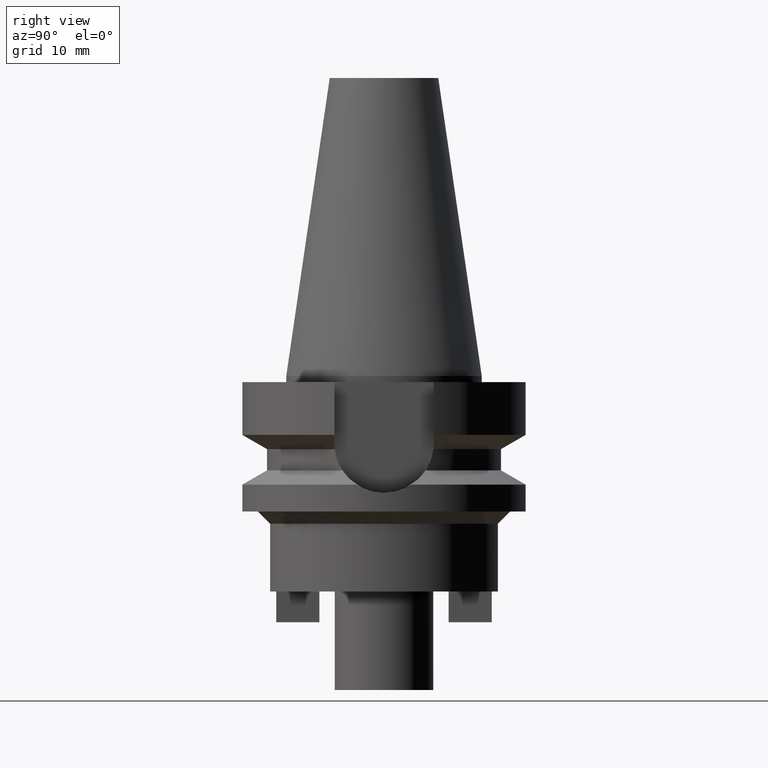
[diagram: clean part render]
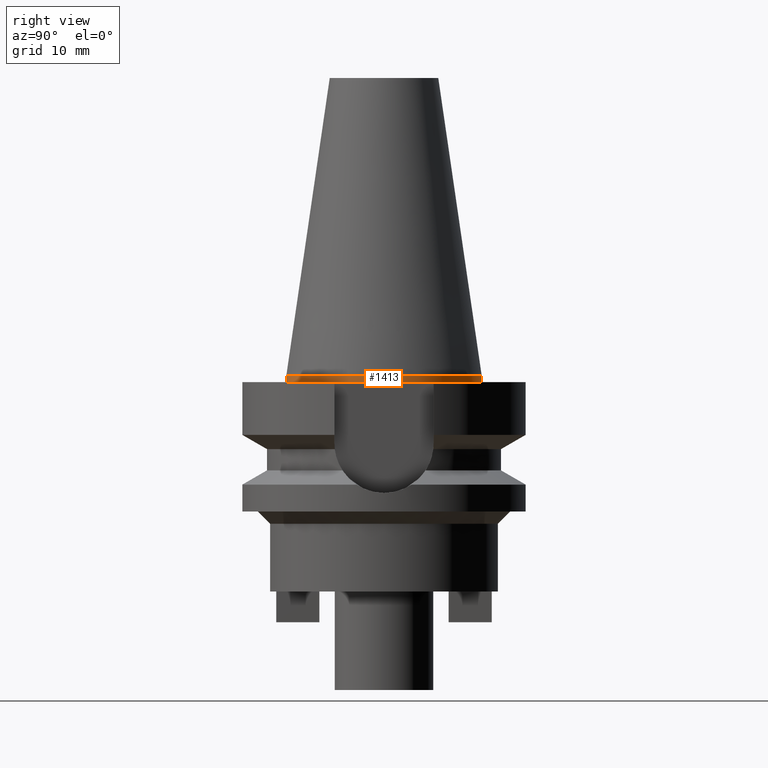
[diagram: same view with one face highlighted and labeled with its STEP entity id]
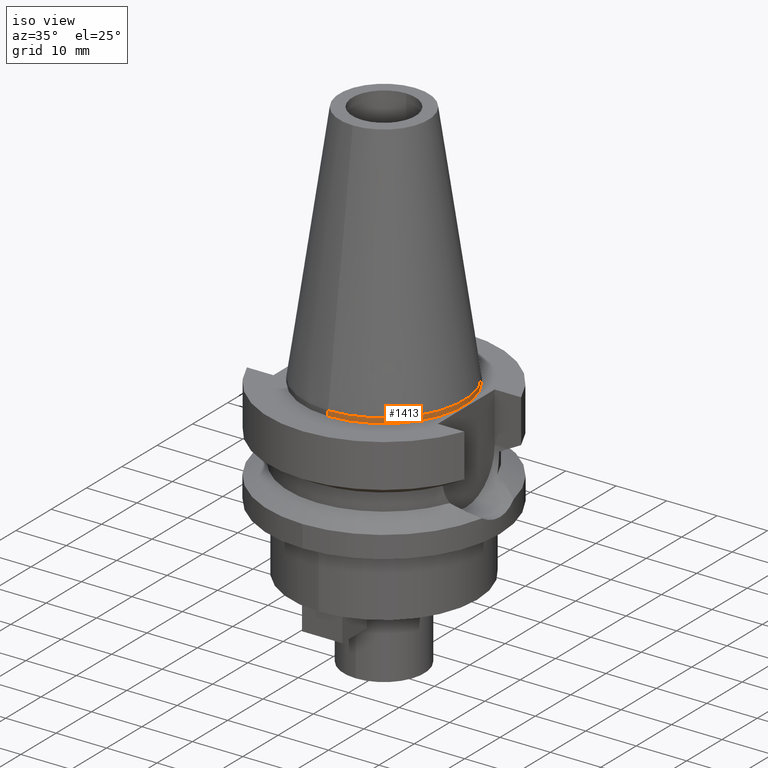
[diagram: same view with one face highlighted and labeled with its STEP entity id]
A machine part, right view. The second image highlights one B-rep face of the part: STEP entity #1413.
A second angle (iso view) of the same face is appended — the face is thin or edge-on in the first view.
In plain terms, the highlighted cylindrical surface (partial cylindrical patch) has radius 15.875 mm, axis along (0, 0, -1).
Its self-contained STEP definition (entity closure, byte-faithful):
#72=CARTESIAN_POINT('',(0.E0,1.521011324541E-14,-3.694822225953E-13));
#73=DIRECTION('',(0.E0,0.E0,-1.E0));
#74=DIRECTION('',(0.E0,1.E0,0.E0));
#75=AXIS2_PLACEMENT_3D('',#72,#73,#74);
#80=DIRECTION('',(0.E0,1.271871497011E-12,-1.E0));
#81=VECTOR('',#80,9.999999999998E-1);
#82=CARTESIAN_POINT('',(0.E0,1.5875E1,-1.598721155460E-13));
#83=LINE('',#82,#81);
#87=DIRECTION('',(0.E0,-1.277200567529E-12,-1.E0));
#88=VECTOR('',#87,9.999999999998E-1);
#89=CARTESIAN_POINT('',(0.E0,-1.5875E1,-1.598721155460E-13));
#90=LINE('',#89,#88);
#154=CARTESIAN_POINT('',(0.E0,1.878240795852E-14,-9.999999999999E-1));
#155=DIRECTION('',(0.E0,0.E0,1.E0));
#156=DIRECTION('',(0.E0,-1.E0,0.E0));
#157=AXIS2_PLACEMENT_3D('',#154,#155,#156);
#1329=CARTESIAN_POINT('',(0.E0,-1.5875E1,-9.999999999999E-1));
#1330=CARTESIAN_POINT('',(0.E0,1.5875E1,-9.999999999999E-1));
#1331=VERTEX_POINT('',#1329);
#1332=VERTEX_POINT('',#1330);
#1333=CARTESIAN_POINT('',(0.E0,1.5875E1,-1.598721155460E-13));
#1334=VERTEX_POINT('',#1333);
#1335=CARTESIAN_POINT('',(0.E0,-1.5875E1,-1.598721155460E-13));
#1336=VERTEX_POINT('',#1335);
#1399=CARTESIAN_POINT('',(0.E0,1.878240795852E-14,5.337E1));
#1400=DIRECTION('',(0.E0,0.E0,-1.E0));
#1401=DIRECTION('',(0.E0,-1.E0,0.E0));
#1402=AXIS2_PLACEMENT_3D('',#1399,#1400,#1401);
#1403=CYLINDRICAL_SURFACE('',#1402,1.5875E1);
#1405=ORIENTED_EDGE('',*,*,#1404,.T.);
#1407=ORIENTED_EDGE('',*,*,#1406,.F.);
#1409=ORIENTED_EDGE('',*,*,#1408,.F.);
#1410=ORIENTED_EDGE('',*,*,#1392,.F.);
#1411=EDGE_LOOP('',(#1405,#1407,#1409,#1410));
#1412=FACE_OUTER_BOUND('',#1411,.F.);
#76=CIRCLE('',#75,1.5875E1);
#158=CIRCLE('',#157,1.5875E1);
#1392=EDGE_CURVE('',#1334,#1336,#76,.T.);
#1404=EDGE_CURVE('',#1334,#1332,#83,.T.);
#1406=EDGE_CURVE('',#1331,#1332,#158,.T.);
#1408=EDGE_CURVE('',#1336,#1331,#90,.T.);
#1413=ADVANCED_FACE('',(#1412),#1403,.T.);